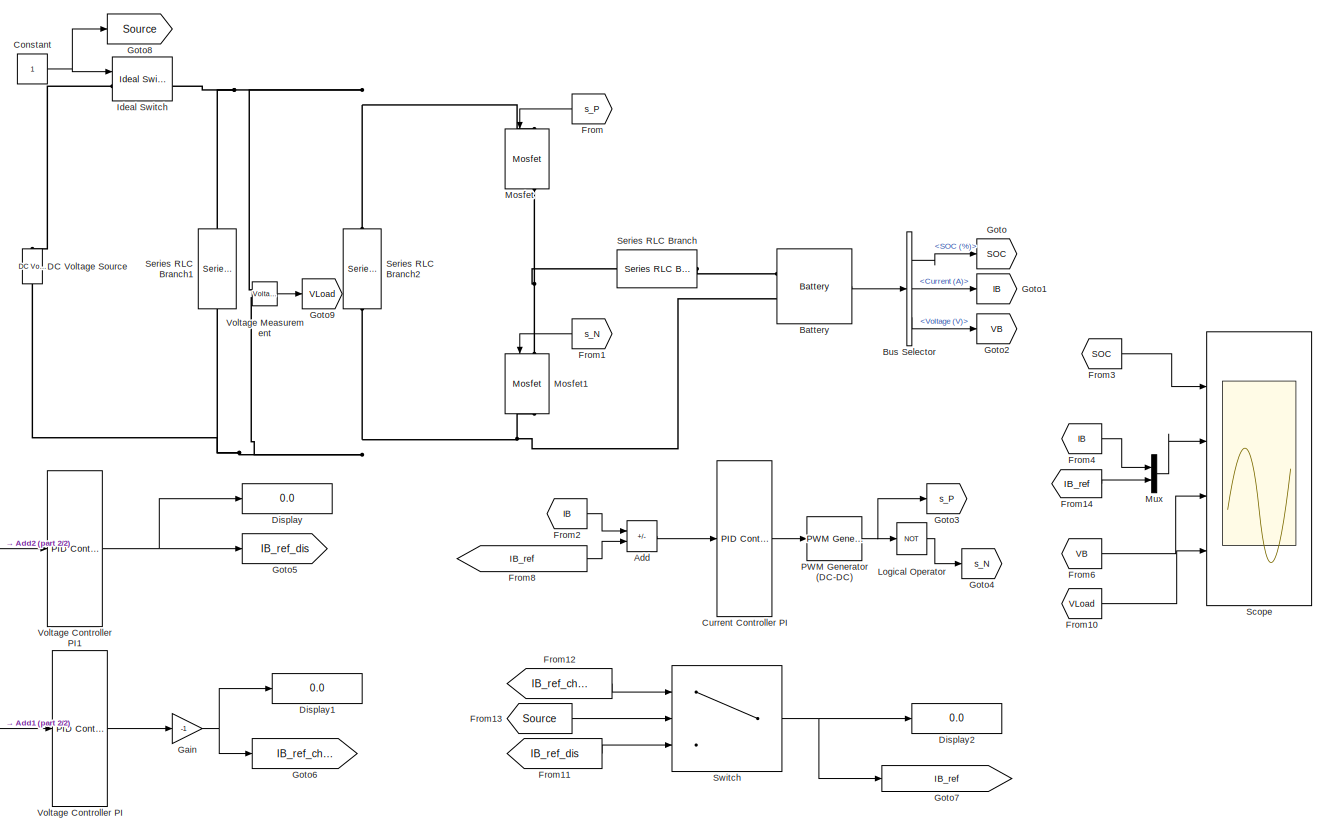
[diagram: root canvas - part 1/2, most of the canvas]
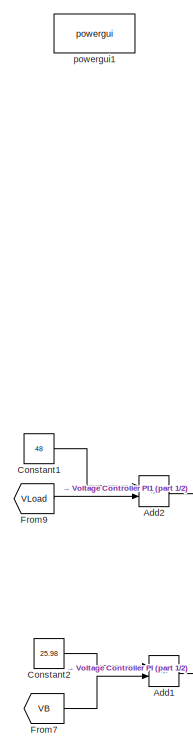
[diagram: root canvas - part 2/2, left side, full height]
MODEL slx_bdf9900d603c
KIND model
CONFIG AbsTol = auto
CONFIG EnableMultiTasking = off
CONFIG FixedStep = 5e-6
CONFIG MaxStep = auto
CONFIG MinStep = auto
CONFIG RelTol = 1e-3
CONFIG SampleTimeConstraint = Unconstrained
CONFIG SolverName = FixedStepDiscrete
CONFIG StartTime = 0.0
CONFIG StopTime = 10.0
BLOCK [Sum] Add
  IconShape = rectangular
  Inputs = +-
  Ports = [2, 1]
BLOCK [Sum] Add1
  IconShape = rectangular
  Inputs = +-
  Ports = [2, 1]
BLOCK [Sum] Add2
  IconShape = rectangular
  Inputs = +-
  Ports = [2, 1]
BLOCK [Reference] Battery  REF=spsBatteryLib/Battery
  Ports = [0, 1, 0, 0, 0, 2]
  SourceBlock = spsBatteryLib/Battery
  SourceProductBaseCode = PS
  SourceType = Battery
BLOCK [BusSelector] Bus Selector
  OutputSignals = SOC (%),Current (A),Voltage (V)
  Ports = [1, 3]
BLOCK [Constant] Constant
BLOCK [Constant] Constant1
  Value = 48
BLOCK [Constant] Constant2
  Value = 25.98
BLOCK [Reference] Current Controller PI  REF=pid_lib/PID Controller
  Ports = [1, 1]
  SourceBlock = pid_lib/PID Controller
  SourceProductBaseCode = SL
  SourceType = PID 1dof
BLOCK [Reference] DC Voltage Source  REF=spsDCVoltageSourceLib/DC Voltage Source
  Ports = [0, 0, 0, 0, 0, 1, 1]
  SourceBlock = spsDCVoltageSourceLib/DC Voltage Source
  SourceProductBaseCode = PS
  SourceType = DC Voltage Source
BLOCK [Display] Display
  Decimation = 1
  Ports = [1]
BLOCK [Display] Display1
  Decimation = 1
  Ports = [1]
BLOCK [Display] Display2
  Decimation = 1
  Ports = [1]
BLOCK [From] From
  GotoTag = s_P
BLOCK [From] From1
  GotoTag = s_N
BLOCK [From] From10
  GotoTag = VLoad
BLOCK [From] From11
  GotoTag = IB_ref_dis
BLOCK [From] From12
  GotoTag = IB_ref_charge
BLOCK [From] From13
  GotoTag = Source
BLOCK [From] From14
  GotoTag = IB_ref
BLOCK [From] From2
  GotoTag = IB
BLOCK [From] From3
  GotoTag = SOC
BLOCK [From] From4
  GotoTag = IB
BLOCK [From] From6
  GotoTag = VB
BLOCK [From] From7
  GotoTag = VB
BLOCK [From] From8
  GotoTag = IB_ref
BLOCK [From] From9
  GotoTag = VLoad
BLOCK [Gain] Gain
  Gain = -1
BLOCK [Goto] Goto
  GotoTag = SOC
BLOCK [Goto] Goto1
  GotoTag = IB
BLOCK [Goto] Goto2
  GotoTag = VB
BLOCK [Goto] Goto3
  GotoTag = s_P
BLOCK [Goto] Goto4
  GotoTag = s_N
BLOCK [Goto] Goto5
  GotoTag = IB_ref_dis
BLOCK [Goto] Goto6
  GotoTag = IB_ref_charge
BLOCK [Goto] Goto7
  GotoTag = IB_ref
BLOCK [Goto] Goto8
  GotoTag = Source
BLOCK [Goto] Goto9
  GotoTag = VLoad
BLOCK [Reference] Ideal Switch  REF=spsIdealSwitchLib/Ideal Switch
  Ports = [1, 1, 0, 0, 0, 1, 1]
  SourceBlock = spsIdealSwitchLib/Ideal Switch
  SourceProductBaseCode = PS
  SourceType = Ideal Switch
BLOCK [Logic] Logical Operator
  AllPortsSameDT = off
  Operator = NOT
  OutDataTypeStr = boolean
  Ports = [1, 1]
BLOCK [Reference] Mosfet  REF=spsMosfetLib/Mosfet
  NameLocation = left
  Ports = [1, 1, 0, 0, 0, 1, 1]
  SourceBlock = spsMosfetLib/Mosfet
  SourceProductBaseCode = PS
  SourceType = Mosfet
BLOCK [Reference] Mosfet1  REF=spsMosfetLib/Mosfet
  NameLocation = left
  Ports = [1, 1, 0, 0, 0, 1, 1]
  SourceBlock = spsMosfetLib/Mosfet
  SourceProductBaseCode = PS
  SourceType = Mosfet
BLOCK [Mux] Mux
  DisplayOption = bar
  Inputs = 2
  Ports = [2, 1]
BLOCK [Reference] PWM Generator (DC-DC)  REF=spsPWMGeneratorDCDCLib/PWM Generator
(DC-DC)
  Ports = [1, 1]
  SourceBlock = spsPWMGeneratorDCDCLib/PWM Generator\n(DC-DC)
  SourceProductBaseCode = PS
  SourceType = PWM Generator (DC-DC)
BLOCK [Scope] Scope
  Floating = off
  NumInputPorts = 4
  Ports = [4]
  ScopeSpecificationString = Simulink.scopes.TimeScopeBlockCfg('CurrentConfiguration', extmgr.ConfigurationSet(extmgr.Configuration('Core','General UI',true),extmgr.Configuration('Core','Source UI',true),extmgr.Configuration('Sources','WiredSimulink',true),extmgr.Configuration('Visuals','Time Domain',true,'SerializedDisplays',{struct('MinYLimReal','79.99995','MaxYLimReal','80.00044','YLabelReal','','MinYLimMag','79.99995','Ma...<+3520ch>
BLOCK [Reference] Series RLC Branch  REF=spsSeriesRLCBranchLib/Series RLC Branch
  Ports = [0, 0, 0, 0, 0, 1, 1]
  SourceBlock = spsSeriesRLCBranchLib/Series RLC Branch
  SourceProductBaseCode = PS
  SourceType = Series RLC Branch
BLOCK [Reference] Series RLC Branch1  REF=spsSeriesRLCBranchLib/Series RLC Branch
  NameLocation = left
  Ports = [0, 0, 0, 0, 0, 1, 1]
  SourceBlock = spsSeriesRLCBranchLib/Series RLC Branch
  SourceProductBaseCode = PS
  SourceType = Series RLC Branch
BLOCK [Reference] Series RLC Branch2  REF=spsSeriesRLCBranchLib/Series RLC Branch
  NameLocation = left
  Ports = [0, 0, 0, 0, 0, 1, 1]
  SourceBlock = spsSeriesRLCBranchLib/Series RLC Branch
  SourceProductBaseCode = PS
  SourceType = Series RLC Branch
BLOCK [Switch] Switch
  Criteria = u2 > Threshold
  InputSameDT = off
  SaturateOnIntegerOverflow = off
BLOCK [Reference] Voltage Controller PI  REF=pid_lib/PID Controller
  Ports = [1, 1]
  SourceBlock = pid_lib/PID Controller
  SourceProductBaseCode = SL
  SourceType = PID 1dof
BLOCK [Reference] Voltage Controller PI1  REF=pid_lib/PID Controller
  Ports = [1, 1]
  SourceBlock = pid_lib/PID Controller
  SourceProductBaseCode = SL
  SourceType = PID 1dof
BLOCK [Reference] Voltage Measurement  REF=spsVoltageMeasurementLib/Voltage Measurement
  Ports = [0, 1, 0, 0, 0, 2]
  SourceBlock = spsVoltageMeasurementLib/Voltage Measurement
  SourceProductBaseCode = PS
  SourceType = Voltage Measurement
  UserDataPersistent = on
BLOCK [Reference] powergui1  REF=spspowerguiLib/powergui
  Ports = []
  Priority = 1
  SourceBlock = spspowerguiLib/powergui
  SourceProductBaseCode = PS
  SourceType = PSB option menu block
LINE Add1:1 -> Voltage Controller PI:1
LINE Add2:1 -> Voltage Controller PI1:1
LINE Add:1 -> Current Controller PI:1
LINE Battery:1 -> Bus Selector:1
LINE Bus Selector:1 -> Goto:1
LINE Bus Selector:2 -> Goto1:1
LINE Bus Selector:3 -> Goto2:1
LINE Constant1:1 -> Add2:1
LINE Constant2:1 -> Add1:1
NET Constant:1 -> Goto8:1, Ideal Switch:1
LINE Current Controller PI:1 -> PWM Generator (DC-DC):1
LINE From10:1 -> Scope:4
LINE From11:1 -> Switch:3
LINE From12:1 -> Switch:1
LINE From13:1 -> Switch:2
LINE From14:1 -> Mux:2
LINE From1:1 -> Mosfet1:1
LINE From2:1 -> Add:1
LINE From3:1 -> Scope:1
LINE From4:1 -> Mux:1
LINE From6:1 -> Scope:3
LINE From7:1 -> Add1:2
LINE From8:1 -> Add:2
LINE From9:1 -> Add2:2
LINE From:1 -> Mosfet:1
NET Gain:1 -> Display1:1, Goto6:1
LINE Logical Operator:1 -> Goto4:1
LINE Mux:1 -> Scope:2
NET PWM Generator (DC-DC):1 -> Goto3:1, Logical Operator:1
NET Switch:1 -> Display2:1, Goto7:1
NET Voltage Controller PI1:1 -> Display:1, Goto5:1
LINE Voltage Controller PI:1 -> Gain:1
LINE Voltage Measurement:1 -> Goto9:1
PLINE Battery:LConn1 -- Series RLC Branch:RConn1
PNET net1: Battery:LConn2 -- DC Voltage Source:LConn1 -- Mosfet1:RConn1 -- Series RLC Branch1:RConn1 -- Series RLC Branch2:RConn1 -- Voltage Measurement:LConn2
PLINE DC Voltage Source:RConn1 -- Ideal Switch:LConn1
PNET net2: Ideal Switch:RConn1 -- Mosfet:LConn1 -- Series RLC Branch1:LConn1 -- Series RLC Branch2:LConn1 -- Voltage Measurement:LConn1
PNET net3: Mosfet1:LConn1 -- Mosfet:RConn1 -- Series RLC Branch:LConn1
note: NET lines group one-source signal fan-out (src -> all destinations, sorted); 1:1 wires keep LINE; PNET lines group multi-terminal physical nets as a canonical sorted terminal list (undirected conserving connections); 2-terminal nets keep the pairwise PLINE form
